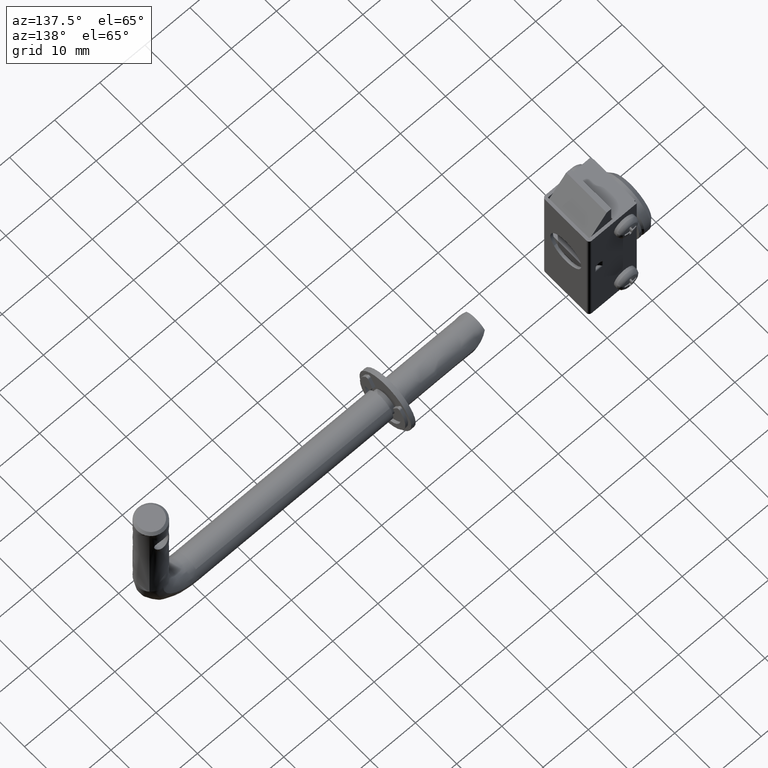
[diagram: clean part render]
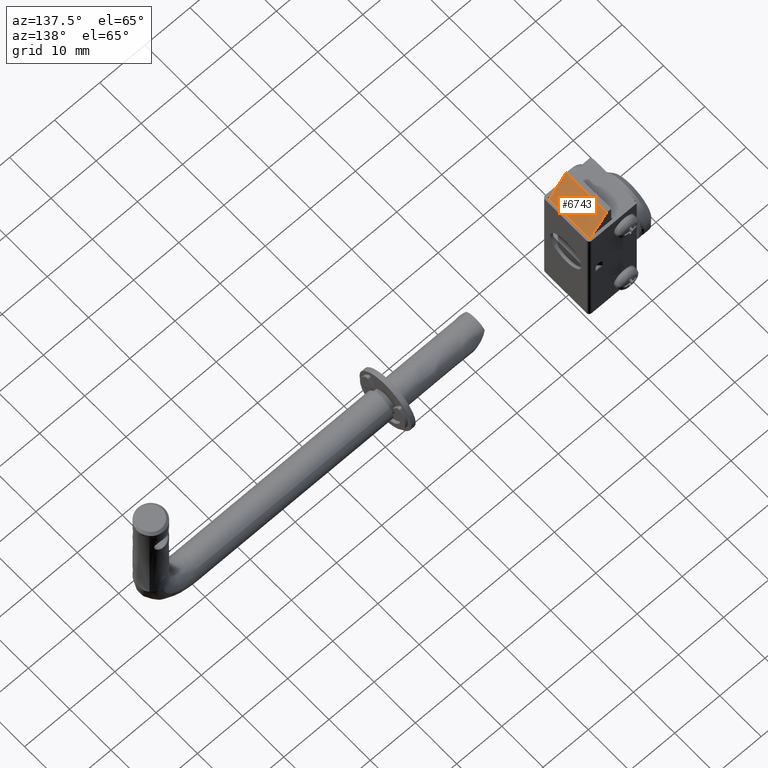
[diagram: same view with one face highlighted and labeled with its STEP entity id]
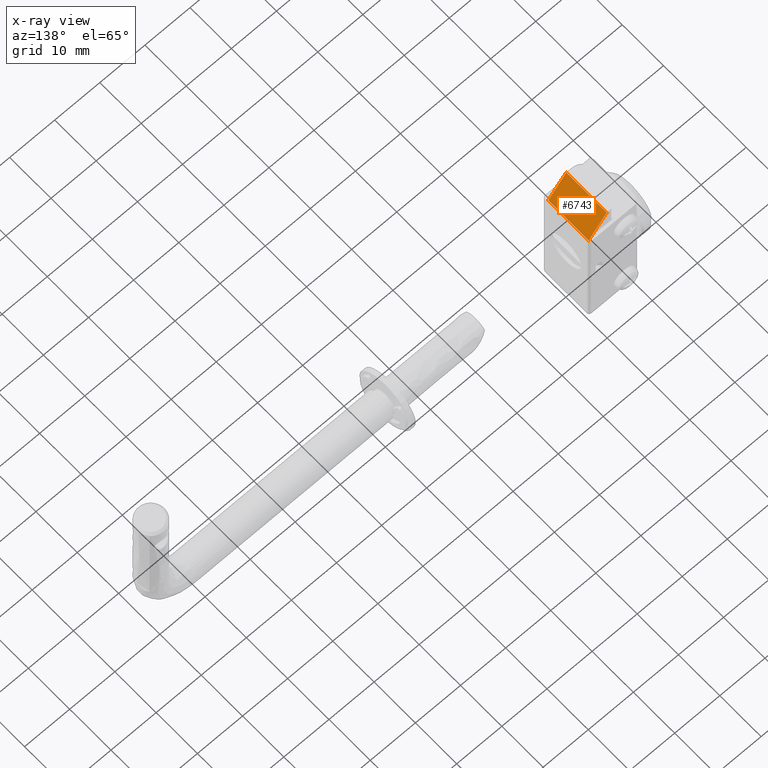
[diagram: x-ray of the same camera — body ghosted, the highlighted face saturated]
A machine part, auxiliary view. The second image highlights one B-rep face of the part: STEP entity #6743.
The next image is the same camera in x-ray: the body ghosted, the highlighted face saturated — about 0% of this face is hidden behind the body in this view.
In plain terms, the highlighted face is a freeform B-spline surface patch.
Its self-contained STEP definition (entity closure, byte-faithful):
#6708=CARTESIAN_POINT('',(-0.300199596096677,-5.389510073001088,26.750255822145739));
#6709=CARTESIAN_POINT('',(-4.699812690055365,-5.389510073001088,32.249749847899402));
#6710=CARTESIAN_POINT('',(-0.300199596096677,5.389510248238745,26.750255822145739));
#6711=CARTESIAN_POINT('',(-4.699812690055365,5.389510248238745,32.249749847899402));
#6712=B_SPLINE_SURFACE_WITH_KNOTS('',1,1,((#6708,#6710),(#6709,#6711)),.UNSPECIFIED.,.F.,.F.,.U.,(2,2),(2,2),(0.0,7.042799863394743),(0.0,10.779020321239830),.UNSPECIFIED.);
#6713=CARTESIAN_POINT('',(-4.500012000048830,-4.900000000000000,32.0));
#6714=VERTEX_POINT('',#6713);
#6715=CARTESIAN_POINT('',(-0.500000000000000,-4.900000000000000,27.000005312417699));
#6716=VERTEX_POINT('',#6715);
#6717=CARTESIAN_POINT('',(-4.500012000048830,-4.900000000000000,32.0));
#6718=CARTESIAN_POINT('',(-0.500000000000000,-4.900000000000000,27.000005312417699));
#6719=QUASI_UNIFORM_CURVE('',1,(#6717,#6718),.UNSPECIFIED.,.F.,.U.);
#6720=EDGE_CURVE('',#6714,#6716,#6719,.T.);
#6721=ORIENTED_EDGE('',*,*,#6720,.T.);
#6722=CARTESIAN_POINT('',(-0.500000000000000,4.900000000000000,27.000005312417699));
#6723=VERTEX_POINT('',#6722);
#6724=CARTESIAN_POINT('',(-0.500000000000000,4.900000000000000,27.000005312417699));
#6725=CARTESIAN_POINT('',(-0.500000000000000,-4.900000000000000,27.000005312417699));
#6726=QUASI_UNIFORM_CURVE('',1,(#6724,#6725),.UNSPECIFIED.,.F.,.U.);
#6727=EDGE_CURVE('',#6723,#6716,#6726,.T.);
#6728=ORIENTED_EDGE('',*,*,#6727,.F.);
#6729=CARTESIAN_POINT('',(-4.500012000048830,4.900000000000000,32.0));
#6730=VERTEX_POINT('',#6729);
#6731=CARTESIAN_POINT('',(-4.500012000048830,4.900000000000000,32.0));
#6732=CARTESIAN_POINT('',(-0.500000000000000,4.900000000000000,27.000005312417699));
#6733=QUASI_UNIFORM_CURVE('',1,(#6731,#6732),.UNSPECIFIED.,.F.,.U.);
#6734=EDGE_CURVE('',#6730,#6723,#6733,.T.);
#6735=ORIENTED_EDGE('',*,*,#6734,.F.);
#6736=CARTESIAN_POINT('',(-4.500012000048830,4.900000000000000,32.0));
#6737=CARTESIAN_POINT('',(-4.500012000048830,-4.900000000000000,32.0));
#6738=QUASI_UNIFORM_CURVE('',1,(#6736,#6737),.UNSPECIFIED.,.F.,.U.);
#6739=EDGE_CURVE('',#6730,#6714,#6738,.T.);
#6740=ORIENTED_EDGE('',*,*,#6739,.T.);
#6741=EDGE_LOOP('',(#6721,#6728,#6735,#6740));
#6742=FACE_OUTER_BOUND('',#6741,.T.);
#6743=ADVANCED_FACE('',(#6742),#6712,.F.);